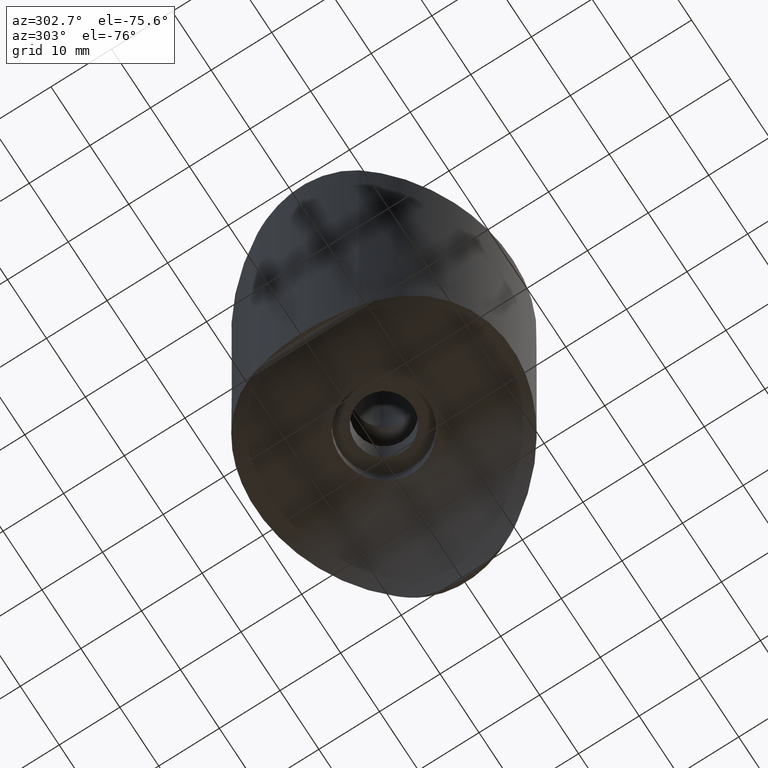
[diagram: clean part render]
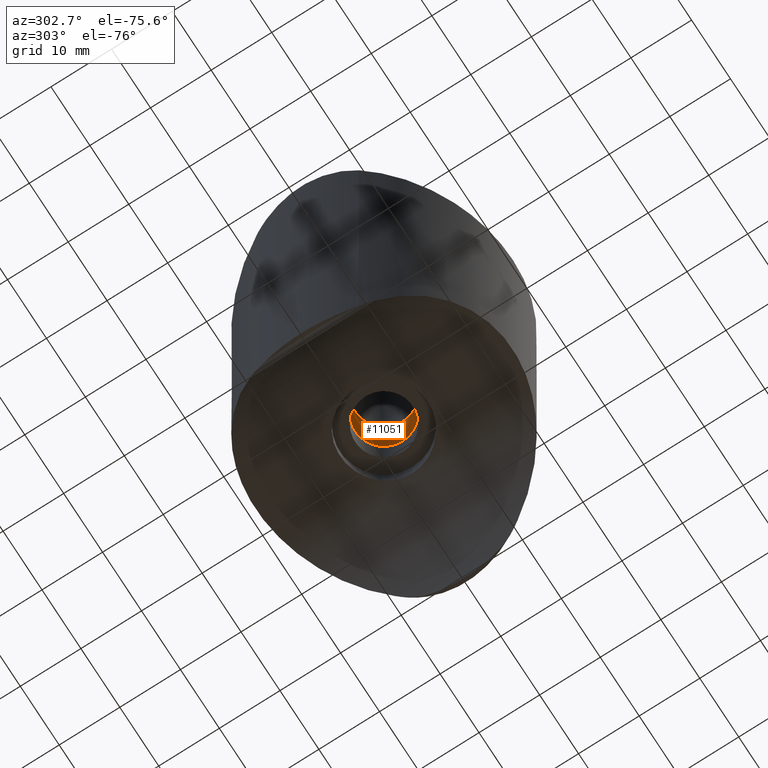
[diagram: same view with one face highlighted and labeled with its STEP entity id]
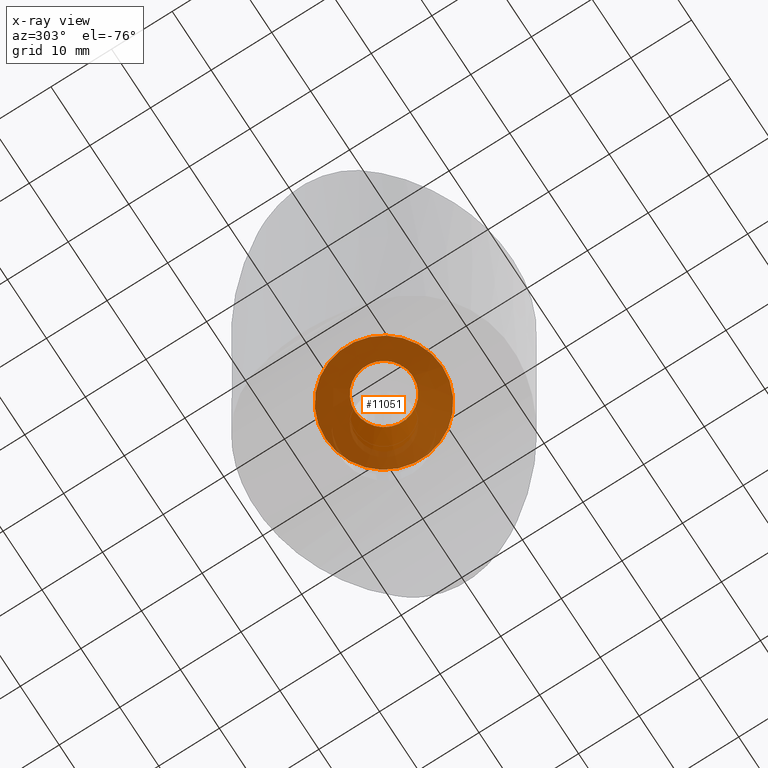
[diagram: x-ray of the same camera — body ghosted, the highlighted face saturated]
A machine part, auxiliary view. The second image highlights one B-rep face of the part: STEP entity #11051.
The next image is the same camera in x-ray: the body ghosted, the highlighted face saturated — about 86% of this face is hidden behind the body in this view.
In plain terms, the highlighted conical surface has half-angle 45 deg.
Its self-contained STEP definition (entity closure, byte-faithful):
#707 = VERTEX_POINT ( 'NONE', #3106 ) ;
#729 = DIRECTION ( 'NONE',  ( -0.000000000000000000, 4.123985650018866956E-18, -1.000000000000000000 ) ) ;
#1270 = DIRECTION ( 'NONE',  ( 0.000000000000000000, 1.000000000000000000, 0.000000000000000000 ) ) ;
#1295 = CIRCLE ( 'NONE', #6464, 9.625000000000000000 ) ;
#2508 = EDGE_CURVE ( 'NONE', #13264, #13264, #1295, .T. ) ;
#2685 = AXIS2_PLACEMENT_3D ( 'NONE', #7368, #12821, #8446 ) ;
#3106 = CARTESIAN_POINT ( 'NONE',  ( 0.000000000000000000, 4.750000000000000000, -5.624999999999944933 ) ) ;
#3494 = ORIENTED_EDGE ( 'NONE', *, *, #8872, .F. ) ;
#4997 = DIRECTION ( 'NONE',  ( 0.000000000000000000, 1.000000000000000000, 0.000000000000000000 ) ) ;
#5046 = CONICAL_SURFACE ( 'NONE', #7954, 4.750000000000000000, 0.7853981633974431720 ) ;
#5501 = CARTESIAN_POINT ( 'NONE',  ( 0.000000000000000000, 4.330184932519807915E-17, -10.49999999999999467 ) ) ;
#6381 = CIRCLE ( 'NONE', #2685, 4.750000000000000000 ) ;
#6464 = AXIS2_PLACEMENT_3D ( 'NONE', #5501, #7643, #1270 ) ;
#7113 = EDGE_LOOP ( 'NONE', ( #3494 ) ) ;
#7368 = CARTESIAN_POINT ( 'NONE',  ( 0.000000000000000000, 2.319741928135590187E-17, -5.624999999999944933 ) ) ;
#7643 = DIRECTION ( 'NONE',  ( -0.000000000000000000, 4.123985650018866956E-18, -1.000000000000000000 ) ) ;
#7954 = AXIS2_PLACEMENT_3D ( 'NONE', #11379, #729, #4997 ) ;
#8446 = DIRECTION ( 'NONE',  ( 0.000000000000000000, 1.000000000000000000, 0.000000000000000000 ) ) ;
#8698 = EDGE_LOOP ( 'NONE', ( #10072 ) ) ;
#8872 = EDGE_CURVE ( 'NONE', #707, #707, #6381, .T. ) ;
#9542 = FACE_BOUND ( 'NONE', #7113, .T. ) ;
#9701 = FACE_OUTER_BOUND ( 'NONE', #8698, .T. ) ;
#10072 = ORIENTED_EDGE ( 'NONE', *, *, #2508, .T. ) ;
#11051 = ADVANCED_FACE ( 'NONE', ( #9701, #9542 ), #5046, .F. ) ;
#11379 = CARTESIAN_POINT ( 'NONE',  ( 0.000000000000000000, 2.319741928135590187E-17, -5.624999999999944933 ) ) ;
#12821 = DIRECTION ( 'NONE',  ( -0.000000000000000000, 4.123985650018866956E-18, -1.000000000000000000 ) ) ;
#13264 = VERTEX_POINT ( 'NONE', #13787 ) ;
#13787 = CARTESIAN_POINT ( 'NONE',  ( 0.000000000000000000, 9.625000000000000000, -10.49999999999999467 ) ) ;